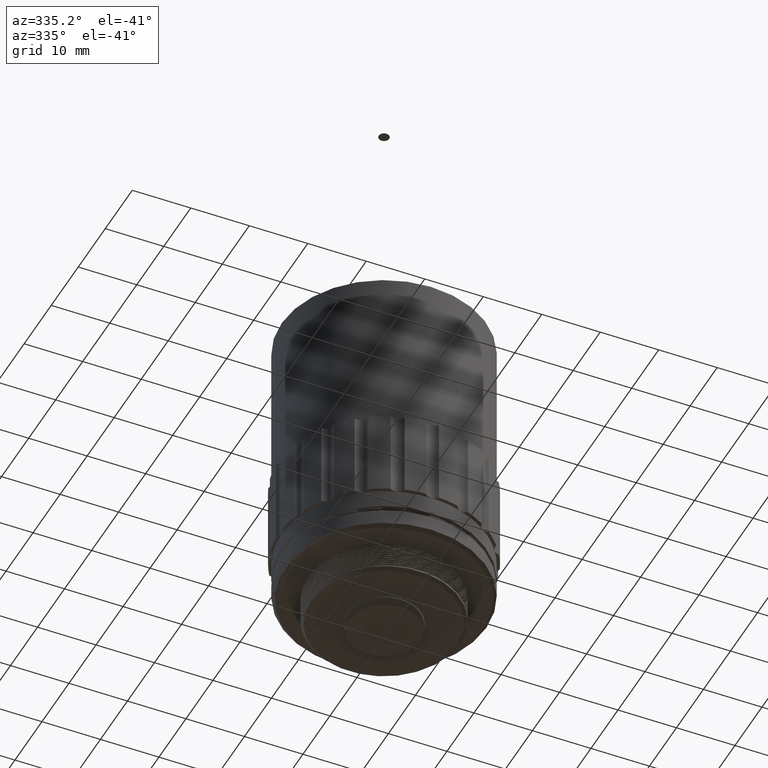
[diagram: clean part render]
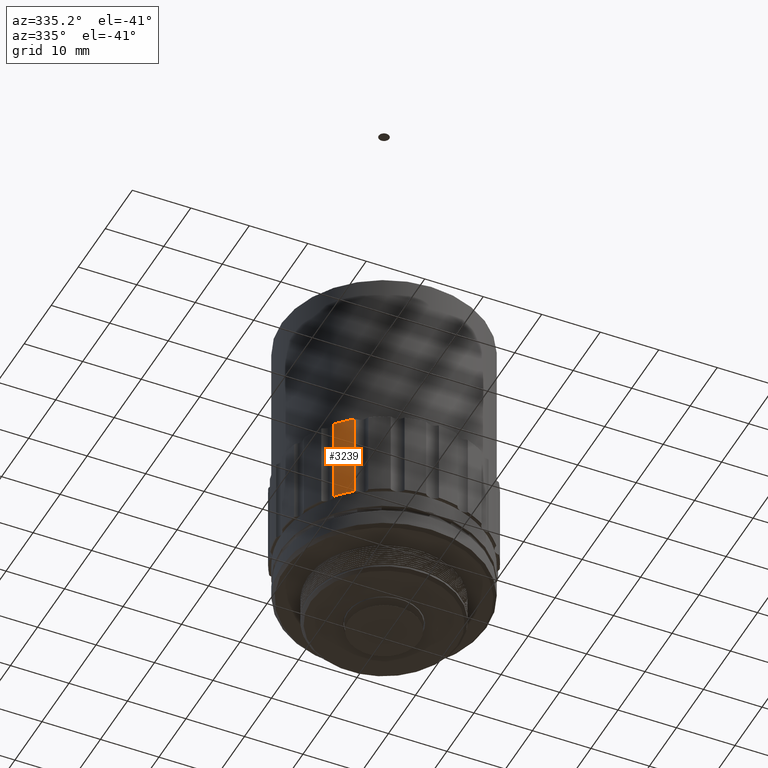
[diagram: same view with one face highlighted and labeled with its STEP entity id]
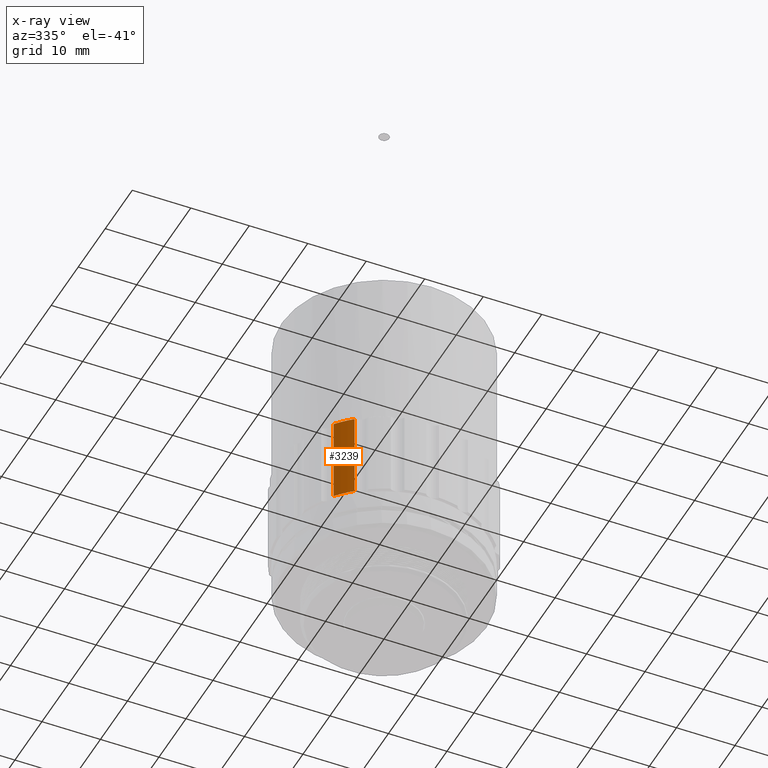
[diagram: x-ray of the same camera — body ghosted, the highlighted face saturated]
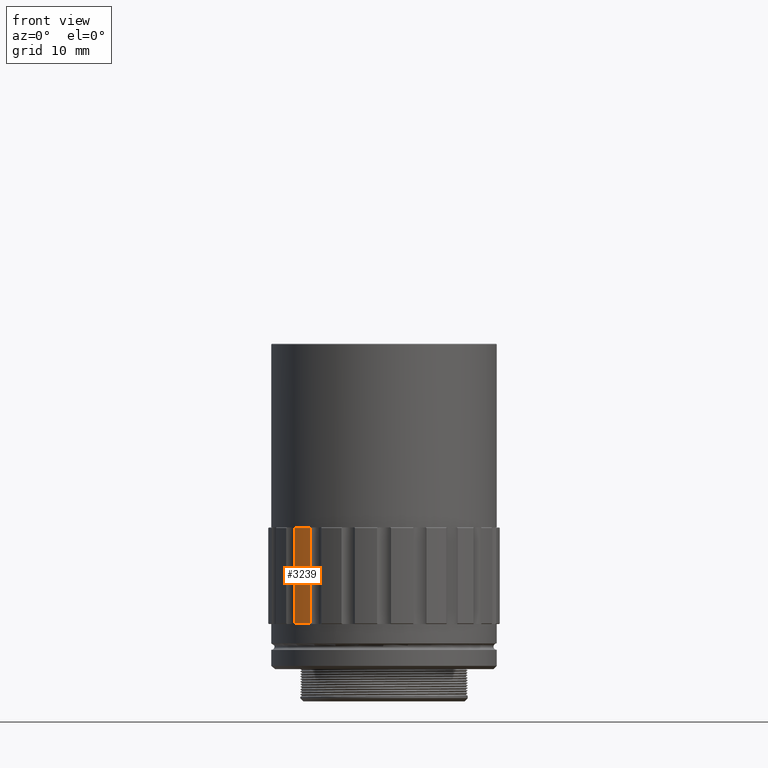
[diagram: same view with one face highlighted and labeled with its STEP entity id]
A machine part, auxiliary view. The second image highlights one B-rep face of the part: STEP entity #3239.
The next image is the same camera in x-ray: the body ghosted, the highlighted face saturated — about 0% of this face is hidden behind the body in this view.
A second angle (front view) of the same face is appended — the face is thin or edge-on in the first view.
In plain terms, the highlighted cylindrical surface (partial cylindrical patch) has radius 18 mm, axis along (0, 0, -1).
Its self-contained STEP definition (entity closure, byte-faithful):
#132 = AXIS2_PLACEMENT_3D ( 'NONE', #7746, #8495, #3995 ) ;
#159 = LINE ( 'NONE', #6183, #5588 ) ;
#371 = VERTEX_POINT ( 'NONE', #3266 ) ;
#694 = CIRCLE ( 'NONE', #132, 18.00000000000379785 ) ;
#819 = DIRECTION ( 'NONE',  ( -1.000000000000000000, 0.000000000000000000, 0.000000000000000000 ) ) ;
#1765 = AXIS2_PLACEMENT_3D ( 'NONE', #4265, #6189, #819 ) ;
#1774 = CIRCLE ( 'NONE', #7365, 18.00000000000000711 ) ;
#2073 = EDGE_LOOP ( 'NONE', ( #5485, #6637, #2638, #4930 ) ) ;
#2202 = VERTEX_POINT ( 'NONE', #5377 ) ;
#2208 = DIRECTION ( 'NONE',  ( 0.000000000000000000, 0.000000000000000000, -1.000000000000000000 ) ) ;
#2401 = DIRECTION ( 'NONE',  ( -1.000000000000000000, 0.000000000000000000, 0.000000000000000000 ) ) ;
#2638 = ORIENTED_EDGE ( 'NONE', *, *, #6030, .T. ) ;
#2696 = LINE ( 'NONE', #5401, #2769 ) ;
#2769 = VECTOR ( 'NONE', #4006, 1000.000000000000000 ) ;
#3060 = CARTESIAN_POINT ( 'NONE',  ( 0.000000000000000000, 0.000000000000000000, 11.59999999979186036 ) ) ;
#3239 = ADVANCED_FACE ( 'NONE', ( #5571 ), #7476, .T. ) ;
#3266 = CARTESIAN_POINT ( 'NONE',  ( -11.44078110895536327, -13.89634943486202978, 26.40000000002856595 ) ) ;
#3708 = EDGE_CURVE ( 'NONE', #8499, #2202, #1774, .T. ) ;
#3711 = DIRECTION ( 'NONE',  ( -0.000000000000000000, -0.000000000000000000, 1.000000000000000000 ) ) ;
#3758 = CARTESIAN_POINT ( 'NONE',  ( -13.89634943483779672, -11.44078110891125633, 11.59999999981867980 ) ) ;
#3995 = DIRECTION ( 'NONE',  ( -1.000000000000000000, 0.000000000000000000, -1.927470528862712292E-16 ) ) ;
#4006 = DIRECTION ( 'NONE',  ( -0.000000000000000000, -0.000000000000000000, 1.000000000000000000 ) ) ;
#4265 = CARTESIAN_POINT ( 'NONE',  ( 0.000000000000000000, 0.000000000000000000, 19.50000000000000000 ) ) ;
#4930 = ORIENTED_EDGE ( 'NONE', *, *, #6413, .F. ) ;
#5377 = CARTESIAN_POINT ( 'NONE',  ( -11.44078110898062839, -13.89634943484923468, 11.59999999987163832 ) ) ;
#5401 = CARTESIAN_POINT ( 'NONE',  ( -11.44078110899833867, -13.89634943486910501, 19.50000000000000000 ) ) ;
#5485 = ORIENTED_EDGE ( 'NONE', *, *, #7489, .T. ) ;
#5571 = FACE_OUTER_BOUND ( 'NONE', #2073, .T. ) ;
#5588 = VECTOR ( 'NONE', #2208, 1000.000000000000000 ) ;
#6030 = EDGE_CURVE ( 'NONE', #2202, #371, #2696, .T. ) ;
#6183 = CARTESIAN_POINT ( 'NONE',  ( -13.89634943486910146, -11.44078110899834577, 19.50000000000000000 ) ) ;
#6189 = DIRECTION ( 'NONE',  ( 0.000000000000000000, 0.000000000000000000, -1.000000000000000000 ) ) ;
#6413 = EDGE_CURVE ( 'NONE', #7509, #371, #694, .T. ) ;
#6637 = ORIENTED_EDGE ( 'NONE', *, *, #3708, .T. ) ;
#7365 = AXIS2_PLACEMENT_3D ( 'NONE', #3060, #3711, #2401 ) ;
#7476 = CYLINDRICAL_SURFACE ( 'NONE', #1765, 18.00000000000000711 ) ;
#7489 = EDGE_CURVE ( 'NONE', #7509, #8499, #159, .T. ) ;
#7509 = VERTEX_POINT ( 'NONE', #8221 ) ;
#7746 = CARTESIAN_POINT ( 'NONE',  ( 3.014477556462000876E-12, 3.485059463237405453E-12, 26.39999999999619718 ) ) ;
#8221 = CARTESIAN_POINT ( 'NONE',  ( -13.89634943486980845, -11.44078110899757839, 26.39999999999576019 ) ) ;
#8495 = DIRECTION ( 'NONE',  ( -9.637352644313915216E-17, -3.715142639634575557E-32, 1.000000000000000000 ) ) ;
#8499 = VERTEX_POINT ( 'NONE', #3758 ) ;